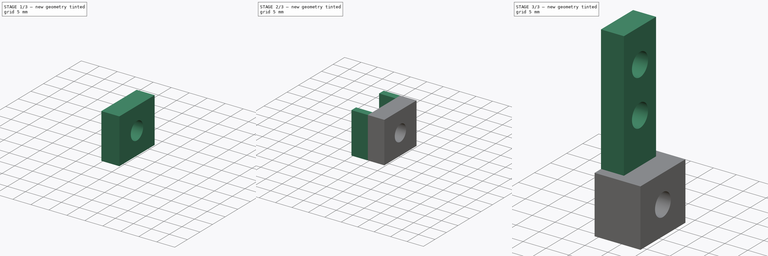
[diagram: build sequence overview — one tinted view per stage of 3, left to right]
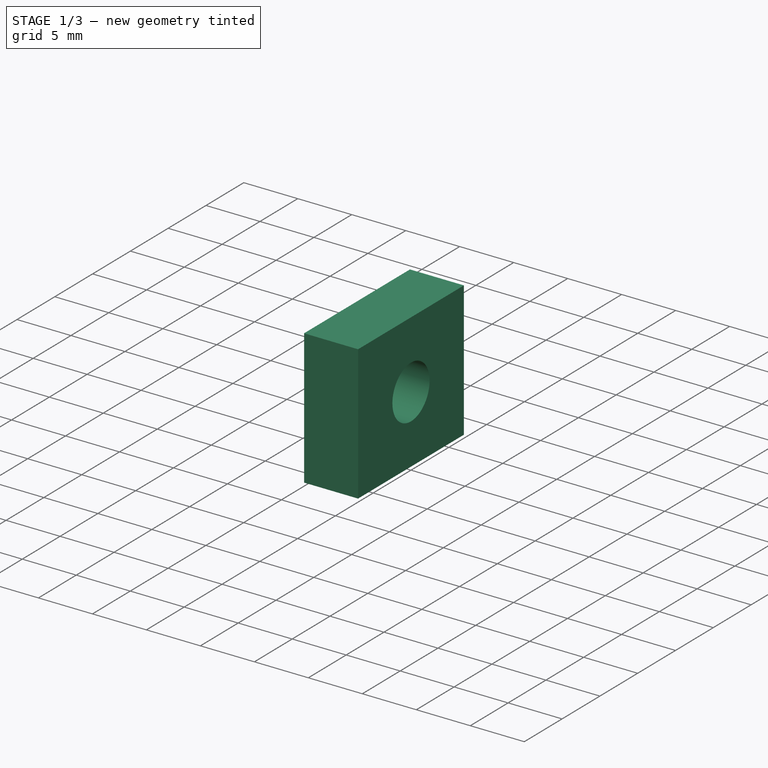
[diagram: stage 1 of 3 — iso view after this stage's code; geometry added in this stage tinted green]
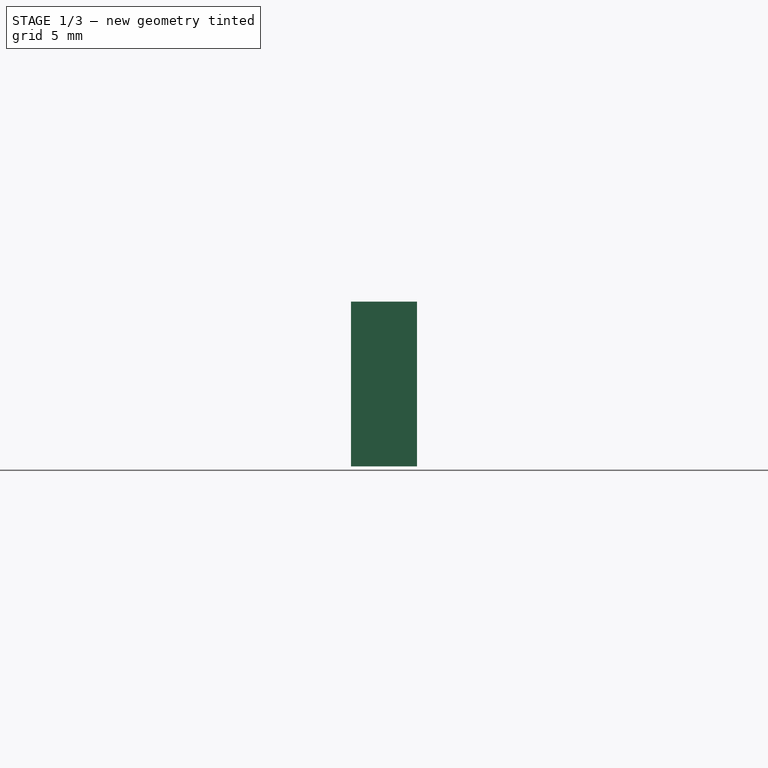
[diagram: stage 1 of 3 — front view after this stage's code; geometry added in this stage tinted green]
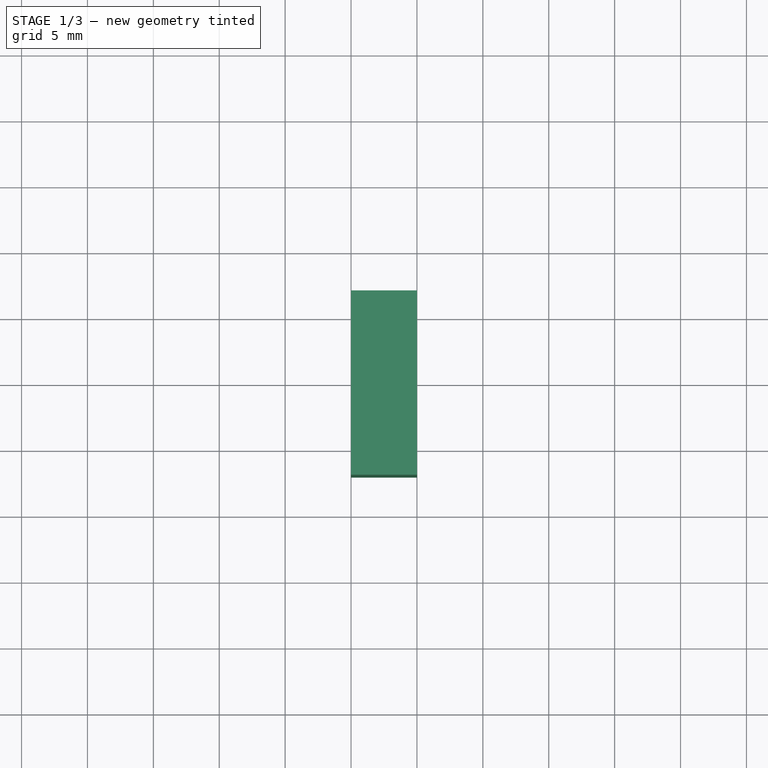
[diagram: stage 1 of 3 — top view after this stage's code; geometry added in this stage tinted green]
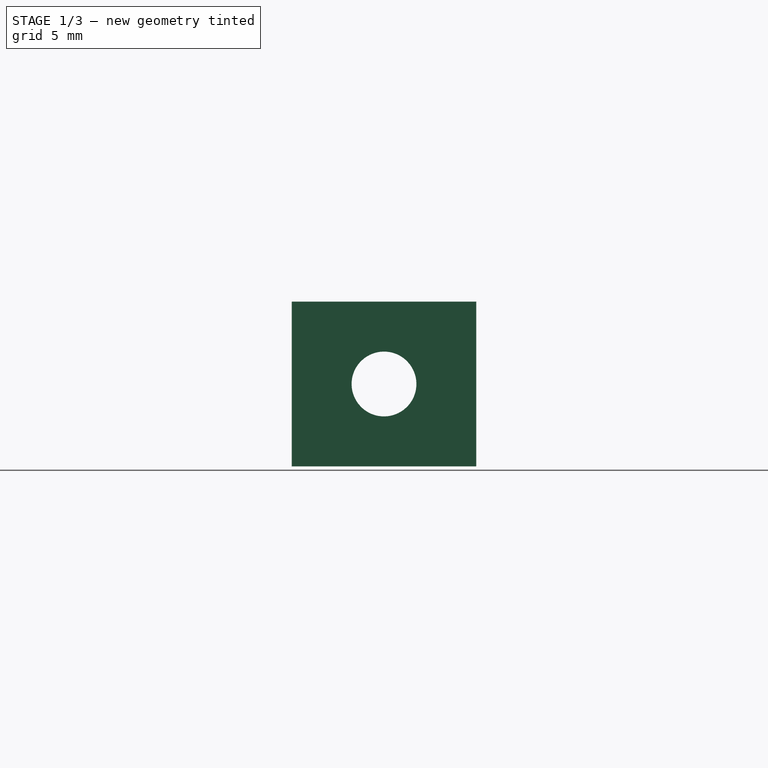
[diagram: stage 1 of 3 — right view after this stage's code; geometry added in this stage tinted green]
FCSTD DOCUMENT  (FreeCAD 0.18R16146 (Git))
Label: holder
Comment: # 2020-08-04 16:31:12: read from <userpath>/repositories/sussex_neuro/Olfactometer/hardware/mechanics/from_raiser_et_al/holder.ipt
License: All rights reserved
LicenseURL: http://en.wikipedia.org/wiki/All_rights_reserved
objects: Sketcher::SketchObject×12, Part::Extrusion×5, Spreadsheet::Sheet×1, PartDesign::Hole×1
note: 19 computed .brp shape members not serialized (recipe doc carries the construction recipe); baked Part::Feature solids carry a one-line shape summary decoded from their .brp

FEATURE [Sketcher::SketchObject] Sketch6
  Placement = pos=(5,0,0) rot=(0,1,0;1.5708rad)
  sketch-geometry (6):
    g0: LineSegment StartX=27.5 StartY=12 StartZ=0 EndX=40 EndY=12 EndZ=0
    g1: LineSegment StartX=40 StartY=12 StartZ=0 EndX=40 EndY=-2 EndZ=0
    g2: LineSegment StartX=40 StartY=-2 StartZ=0 EndX=27.5 EndY=-2 EndZ=0
    g3: LineSegment StartX=27.5 StartY=-2 StartZ=0 EndX=27.5 EndY=12 EndZ=0
    g4: LineSegment [constr] StartX=40 StartY=-2 StartZ=0 EndX=40 EndY=12 EndZ=0
    g5: LineSegment [constr] StartX=27.5 StartY=12 StartZ=0 EndX=40 EndY=12 EndZ=0
  constraints (3):
    c: Perpendicular(g0,g1)
    c: Parallel(g0,g2)
    c: Horizontal(g0)
FEATURE [Sketcher::SketchObject] Sketch6_bp
  Placement = pos=(5,0,0) rot=(0,1,0;1.5708rad)
  sketch-geometry (4):
    g0: LineSegment StartX=40 StartY=-2 StartZ=0 EndX=40 EndY=12 EndZ=0
    g1: LineSegment StartX=40 StartY=12 StartZ=0 EndX=27.5 EndY=12 EndZ=0
    g2: LineSegment StartX=27.5 StartY=12 StartZ=0 EndX=27.5 EndY=-2 EndZ=0
    g3: LineSegment StartX=27.5 StartY=-2 StartZ=0 EndX=40 EndY=-2 EndZ=0
FEATURE [Part::Extrusion] Extrusion6
  Base = -> Sketch6_bp
  Dir = (1,0,0)
  DirMode = 0
  FaceMakerClass = Part::FaceMakerBullseye
  LengthFwd = 5
  LengthRev = 0
  Solid = true
  Symmetric = false
  expr: LengthFwd = Parameters.d26_
  expr: TaperAngle = Parameters.d27_
FEATURE [Sketcher::SketchObject] Sketch7
  Placement = pos=(10,0,0) rot=(0,1,0;1.5708rad)
  sketch-geometry (2):
    g0: LineSegment [constr] StartX=40 StartY=1.1e-15 StartZ=0 EndX=40 EndY=10 EndZ=0
    g1: LineSegment [constr] StartX=38 StartY=12 StartZ=0 EndX=29.5 EndY=12 EndZ=0
FEATURE [Sketcher::SketchObject] Hole1_bp
  Placement = pos=(10,0,0) rot=(0,1,0;1.5708rad)
  sketch-geometry (1):
    g0: Circle CenterX=33.75 CenterY=5 CenterZ=0 NormalX=0 NormalY=0 NormalZ=1 AngleXU=0 Radius=2.4585
FEATURE [PartDesign::Hole] Hole1
  BaseFeature = -> Extrusion6
  Depth = 9.47722
  DepthType = 0
  Diameter = 4.917
  DrillPoint = 1
  DrillPointAngle = 118
  HoleCutCountersinkAngle = 90
  HoleCutDepth = 0
  HoleCutDiameter = 0
  HoleCutType = 0
  ModelActualThread = false
  Profile = -> Hole1_bp
  Tapered = false
  TaperedAngle = 90
  ThreadAngle = 0
  ThreadClass = 0
  ThreadCutOffInner = 0
  ThreadCutOffOuter = 0
  ThreadDirection = 0
  ThreadFit = 0
  ThreadPitch = 0
  ThreadSize = 0
  ThreadType = 0
  Threaded = false
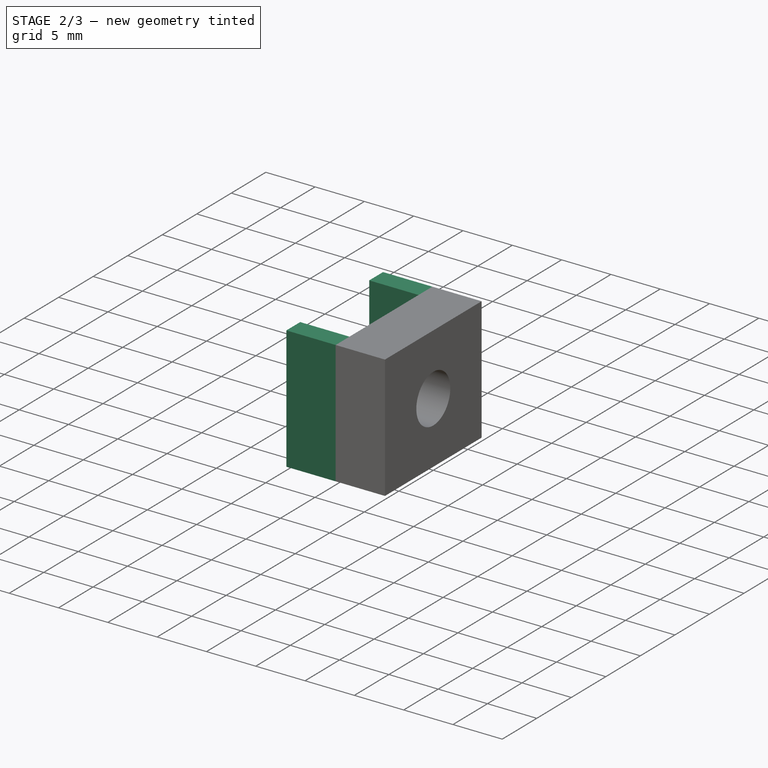
[diagram: stage 2 of 3 — iso view after this stage's code; geometry added in this stage tinted green]
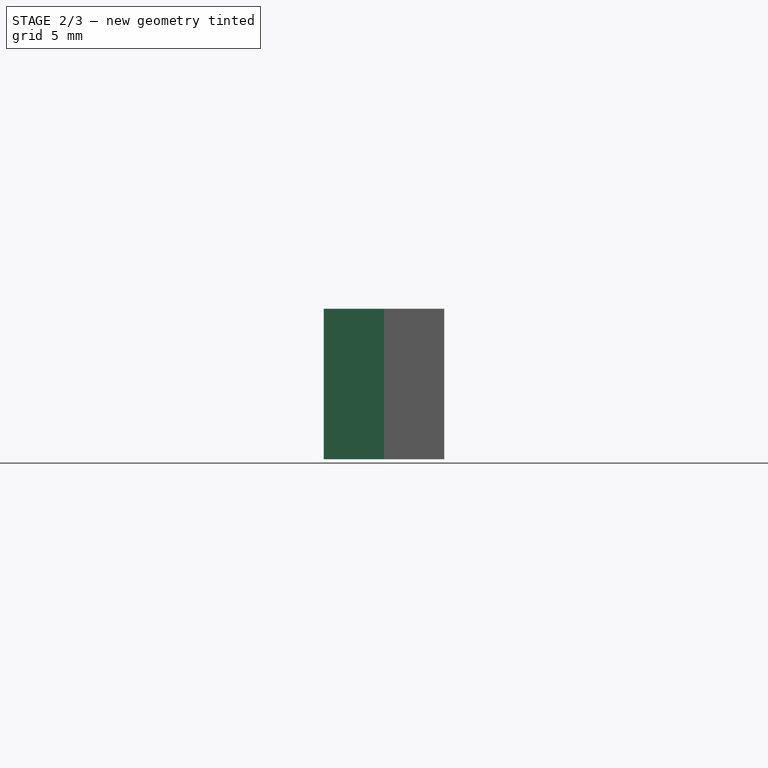
[diagram: stage 2 of 3 — front view after this stage's code; geometry added in this stage tinted green]
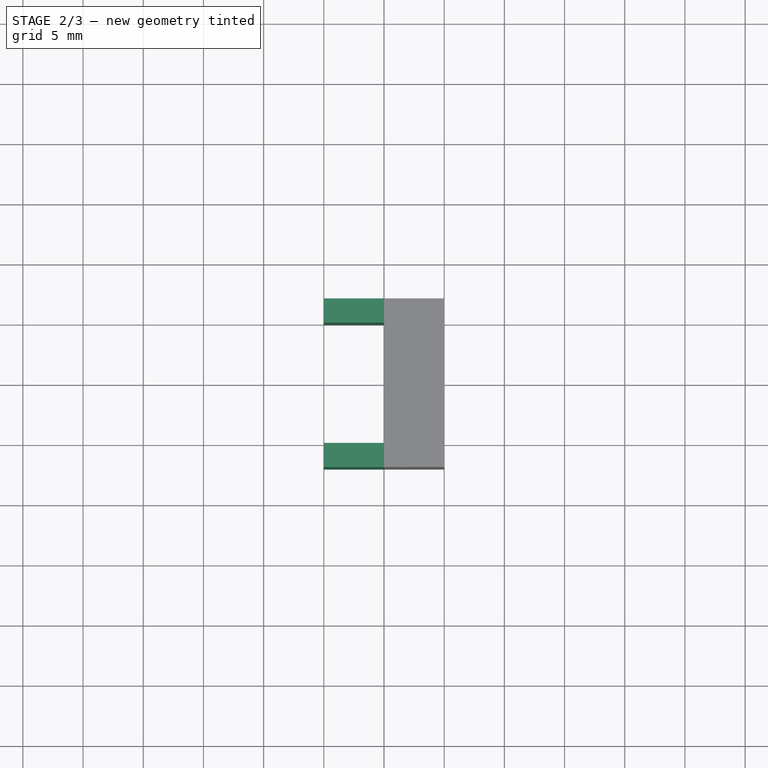
[diagram: stage 2 of 3 — top view after this stage's code; geometry added in this stage tinted green]
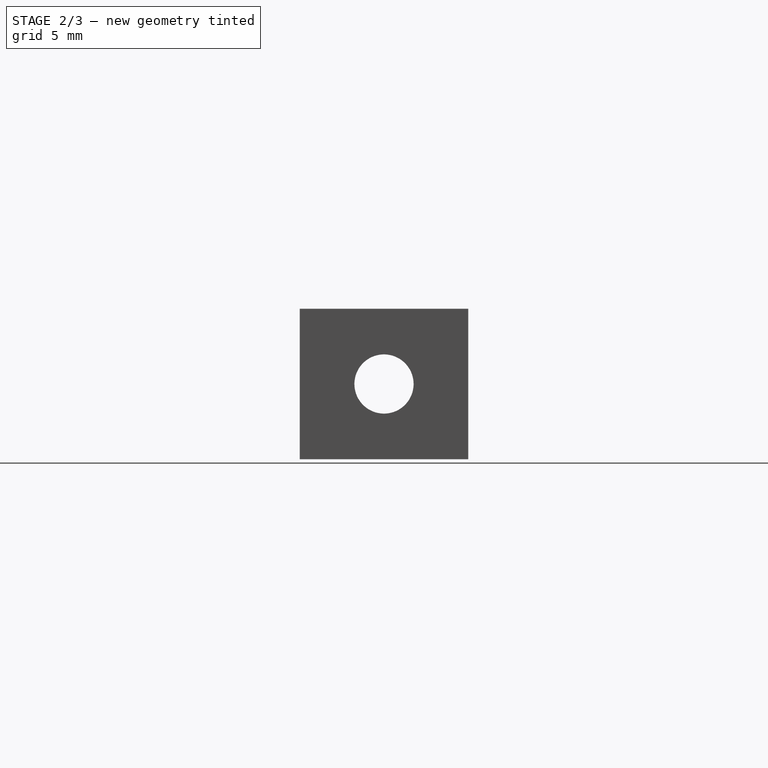
[diagram: stage 2 of 3 — right view after this stage's code; geometry added in this stage tinted green]
FEATURE [Sketcher::SketchObject] Sketch4
  Placement = pos=(0,10,0) rot=(-1,0,0;1.5708rad)
  sketch-geometry (6):
    g0: LineSegment [constr] StartX=5 StartY=0 StartZ=0 EndX=5 EndY=40 EndZ=0
    g1: LineSegment [constr] StartX=0 StartY=40 StartZ=0 EndX=5 EndY=40 EndZ=0
    g2: LineSegment StartX=0 StartY=40 StartZ=0 EndX=5 EndY=40 EndZ=0
    g3: LineSegment StartX=5 StartY=40 StartZ=0 EndX=5 EndY=27.5 EndZ=0
    g4: LineSegment StartX=5 StartY=27.5 StartZ=0 EndX=2.7e-15 EndY=27.5 EndZ=0
    g5: LineSegment StartX=2.3e-15 StartY=27.5 StartZ=0 EndX=0 EndY=40 EndZ=0
  constraints (6):
    c: Perpendicular(g2,g3)
    c: Parallel(g2,g4)
    c: Parallel(g3,g5)
    c: Horizontal(g2)
    c: PointOnObject(g3,g0)
    c: Coincident(g3,g4)
FEATURE [Sketcher::SketchObject] Sketch4_bp
  Placement = pos=(0,10,0) rot=(-1,0,0;1.5708rad)
  sketch-geometry (4):
    g0: LineSegment StartX=0 StartY=40 StartZ=0 EndX=2.3e-15 EndY=27.5 EndZ=0
    g1: LineSegment StartX=2.3e-15 StartY=27.5 StartZ=0 EndX=5 EndY=27.5 EndZ=0
    g2: LineSegment StartX=5 StartY=27.5 StartZ=0 EndX=5 EndY=40 EndZ=0
    g3: LineSegment StartX=5 StartY=40 StartZ=0 EndX=0 EndY=40 EndZ=0
FEATURE [Part::Extrusion] Extrusion3
  Base = -> Sketch4_bp
  Dir = (0,1,0)
  DirMode = 0
  FaceMakerClass = Part::FaceMakerBullseye
  LengthFwd = 2
  LengthRev = 0
  Solid = true
  Symmetric = false
  expr: LengthFwd = Parameters.d6_
  expr: TaperAngle = Parameters.d7_
FEATURE [Sketcher::SketchObject] Sketch5
  Placement = pos=(0,0,0) rot=(1,0,0;1.5708rad)
  sketch-geometry (5):
    g0: LineSegment [constr] StartX=5 StartY=0 StartZ=0 EndX=5 EndY=-40 EndZ=0
    g1: LineSegment StartX=0 StartY=-40 StartZ=0 EndX=5 EndY=-40 EndZ=0
    g2: LineSegment StartX=5 StartY=-40 StartZ=0 EndX=5 EndY=-27.5 EndZ=0
    g3: LineSegment StartX=5 StartY=-27.5 StartZ=0 EndX=-3.6e-15 EndY=-27.5 EndZ=0
    g4: LineSegment StartX=-3.8e-15 StartY=-27.5 StartZ=0 EndX=0 EndY=-40 EndZ=0
  constraints (5):
    c: Perpendicular(g1,g2)
    c: Parallel(g1,g3)
    c: Horizontal(g1)
    c: PointOnObject(g2,g0)
    c: Coincident(g2,g3)
FEATURE [Sketcher::SketchObject] Sketch5_bp
  Placement = pos=(0,0,0) rot=(1,0,0;1.5708rad)
  sketch-geometry (4):
    g0: LineSegment StartX=0 StartY=-40 StartZ=0 EndX=5 EndY=-40 EndZ=0
    g1: LineSegment StartX=5 StartY=-40 StartZ=0 EndX=5 EndY=-27.5 EndZ=0
    g2: LineSegment StartX=5 StartY=-27.5 StartZ=0 EndX=-3.6e-15 EndY=-27.5 EndZ=0
    g3: LineSegment StartX=-3.8e-15 StartY=-27.5 StartZ=0 EndX=0 EndY=-40 EndZ=0
FEATURE [Part::Extrusion] Extrusion4
  Base = -> Sketch5_bp
  Dir = (0,-1,0)
  DirMode = 0
  FaceMakerClass = Part::FaceMakerBullseye
  LengthFwd = 2
  LengthRev = 0
  Solid = true
  Symmetric = false
  expr: LengthFwd = Parameters.d9_
  expr: TaperAngle = Parameters.d10_
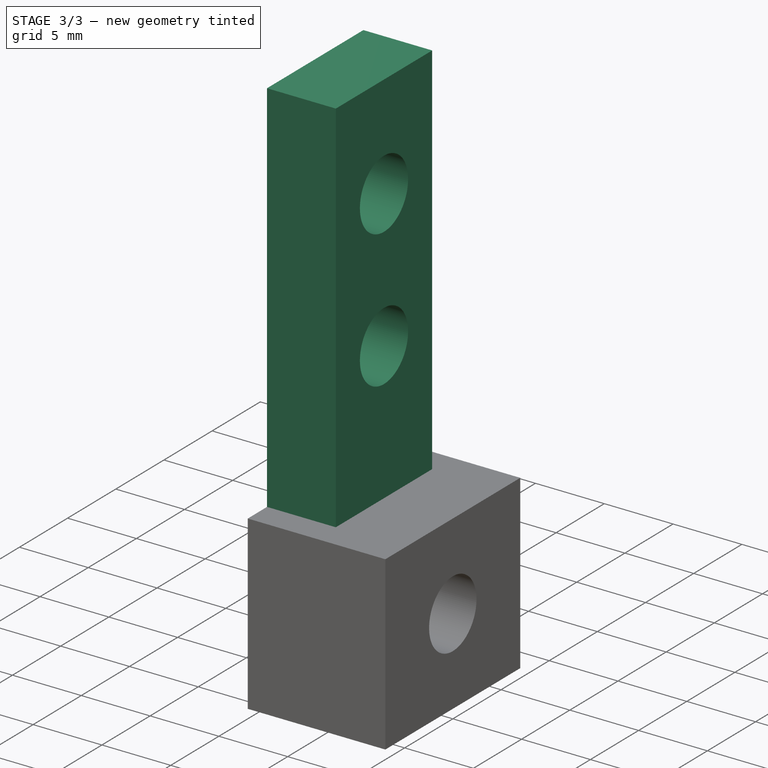
[diagram: stage 3 of 3 — iso view after this stage's code; geometry added in this stage tinted green]
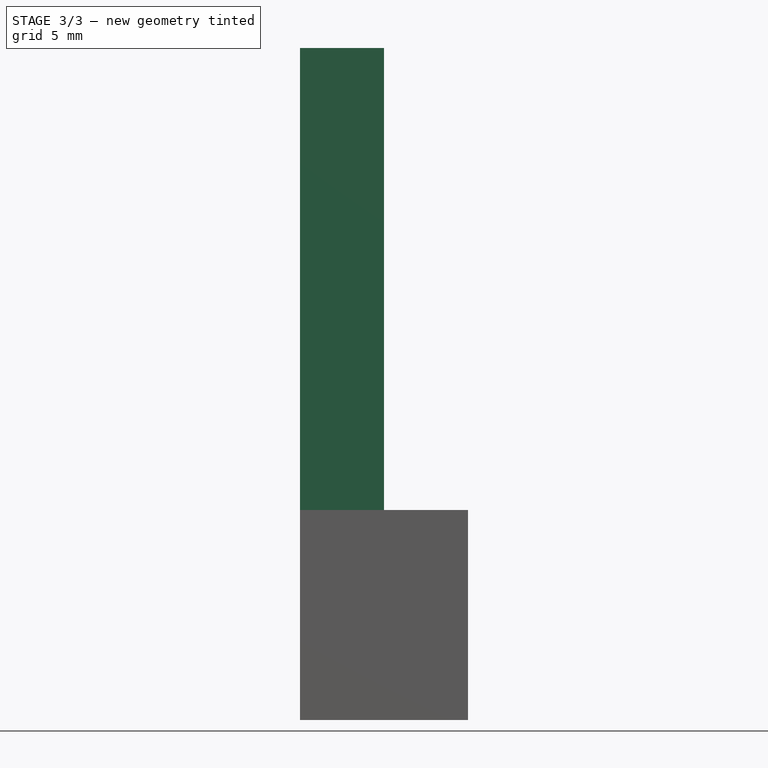
[diagram: stage 3 of 3 — front view after this stage's code; geometry added in this stage tinted green]
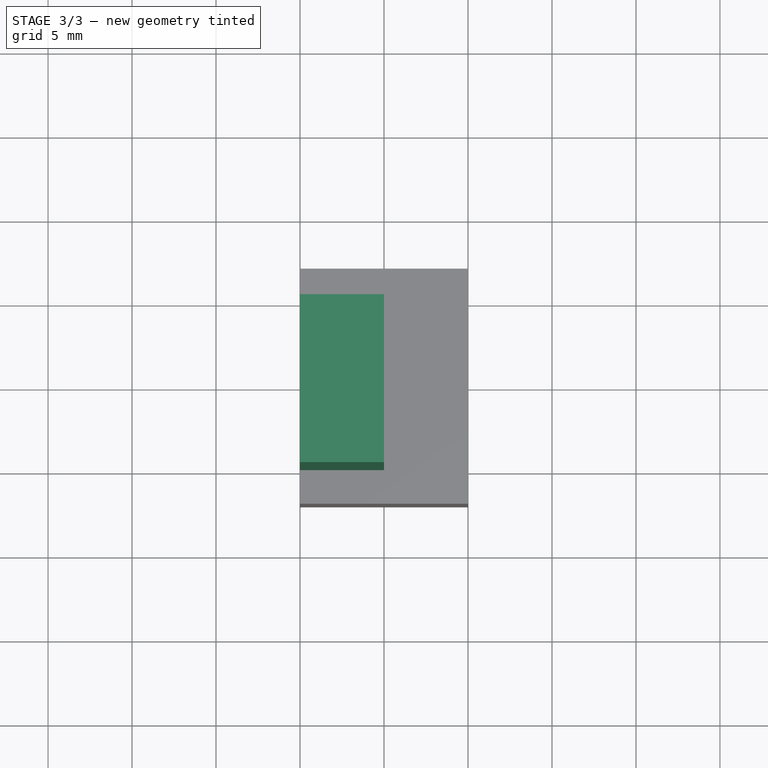
[diagram: stage 3 of 3 — top view after this stage's code; geometry added in this stage tinted green]
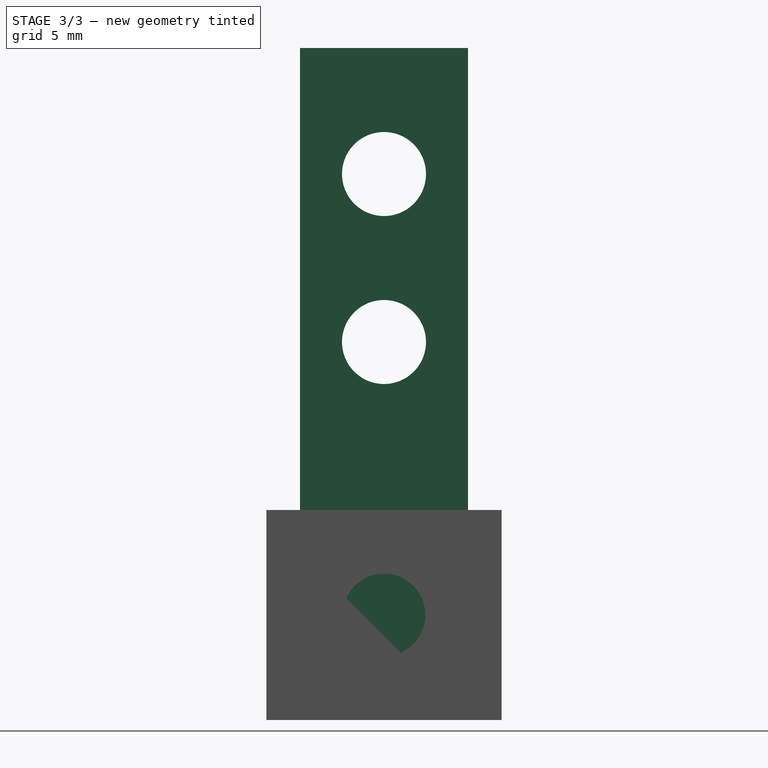
[diagram: stage 3 of 3 — right view after this stage's code; geometry added in this stage tinted green]
FEATURE [Spreadsheet::Sheet] Parameters
  cells = A1=Parameter; B1=Value; C1=Fromula; D1=Tolerance; E1=Comment; A2=d0; B2(d0_)=5; C2=5mm; D2=NOMINAL; A3=d1; B3(d1_)=0; C3=0°; D3=NOMINAL; A4=d10; B4(d10_)=0; C4=0°; D4=NOMINAL; A5=d2; B5(d2_)=10; C5=10mm; D5=NOMINAL; A6=d20; B6(d20_)=1; C6=1mm; D6=NOMINAL; A7=d21; B7(d21_)=2; C7=2mm; D7=NOMINAL; A8=d22; B8(d22_)=45; C8=45°; D8=NOMINAL; A9=d23; B9(d23_)=30; C9=30mm; D9=NOMINAL; A10=d25; B10(d25_)=30; C10=30mm; D10=NOMINAL; A11=d26; B11(d26_)=5; C11=5mm; D11=NOMINAL; A12=d27; B12(d27_)=0; C12=0°; D12=NOMINAL; A13=d28; B13(d28_)=2; C13=2mm; D13=NOMINAL; A14=d29; B14(d29_)=2; C14=2mm; D14=NOMINAL; A15=d3; B15(d3_)=0; C15=0°; D15=NOMINAL; A16=d30; B16(d30_)=45; C16=45°; D16=NOMINAL; A17=d31; B17(d31_)=4.917; C17=4.917mm; D17=NOMINAL; A18=d32; B18(d32_)=6.000000000000001; C18=6mm; D18=NOMINAL; A19=d33; B19(d33_)=4; C19=4mm; D19=NOMINAL; A20=d34; B20(d34_)=2; C20=2mm; D20=NOMINAL; A21=d35; B21(d35_)=90; C21=90°; D21=NOMINAL; A22=d36; B22(d36_)=8; C22=8mm; D22=NOMINAL; A23=d37; B23(d37_)=118; C23=118°; D23=NOMINAL; A24=d38; B24(d38_)=10; C24=10mm; D24=NOMINAL; A25=d39; B25(d39_)=5; C25=5mm; D25=NOMINAL; A26=d40; B26(d40_)=5; C26=5mm; D26=NOMINAL; A27=d41; B27(d41_)=10; C27=10mm; D27=NOMINAL; A28=d42; B28(d42_)=5; C28=5mm; D28=NOMINAL; A29=d43; B29(d43_)=5; C29=5mm; D29=NOMINAL; A30=d44; B30(d44_)=7; C30=7mm; D30=NOMINAL; A31=d45; B31(d45_)=6.25; C31=6.25mm; D31=NOMINAL; A32=d5; B32(d5_)=12.5; C32=12.5mm; D32=NOMINAL; A33=d6; B33(d6_)=2; C33=2mm; D33=NOMINAL; A34=d7; B34(d7_)=0; C34=0°; D34=NOMINAL; A35=d8; B35(d8_)=12.5; C35=12.5mm; D35=NOMINAL; A36=d9; B36(d9_)=2; C36=2mm; D36=NOMINAL
FEATURE [Sketcher::SketchObject] Sketch1
  Placement = pos=(0,0,0) rot=(0.57735,0.57735,0.57735;2.0944rad)
  sketch-geometry (6):
    g0: Circle CenterX=5 CenterY=-7.5 CenterZ=0 NormalX=0 NormalY=0 NormalZ=1 AngleXU=0 Radius=2.5
    g1: Circle CenterX=5 CenterY=-17.5 CenterZ=0 NormalX=0 NormalY=0 NormalZ=1 AngleXU=0 Radius=2.5
    g2: LineSegment StartX=1.3e-15 StartY=-30 StartZ=0 EndX=10 EndY=-30 EndZ=0
    g3: LineSegment StartX=10 StartY=-30 StartZ=0 EndX=10 EndY=0 EndZ=0
    g4: LineSegment StartX=10 StartY=0 StartZ=0 EndX=0 EndY=0 EndZ=0
    g5: LineSegment StartX=0 StartY=0 StartZ=0 EndX=1.3e-15 EndY=-30 EndZ=0
  constraints (4):
    c: Radius(g0) = 2.5  'd42'
    c: Radius(g1) = 2.5  'd43'
    c: Coincident(g-1,g4)
    c: Coincident(g-1,g5)
FEATURE [Sketcher::SketchObject] Sketch1_bp
  Placement = pos=(0,0,0) rot=(0.57735,0.57735,0.57735;2.0944rad)
  sketch-geometry (6):
    g0: LineSegment StartX=1.3e-15 StartY=-30 StartZ=0 EndX=10 EndY=-30 EndZ=0
    g1: LineSegment StartX=10 StartY=-30 StartZ=0 EndX=10 EndY=0 EndZ=0
    g2: LineSegment StartX=10 StartY=0 StartZ=0 EndX=0 EndY=0 EndZ=0
    g3: LineSegment StartX=0 StartY=0 StartZ=0 EndX=1.3e-15 EndY=-30 EndZ=0
    g4: Circle CenterX=5 CenterY=-7.5 CenterZ=0 NormalX=0 NormalY=0 NormalZ=1 AngleXU=0 Radius=2.5
    g5: Circle CenterX=5 CenterY=-17.5 CenterZ=0 NormalX=0 NormalY=0 NormalZ=1 AngleXU=0 Radius=2.5
FEATURE [Part::Extrusion] Extrusion1
  Base = -> Sketch1_bp
  Dir = (1,0,0)
  DirMode = 0
  FaceMakerClass = Part::FaceMakerBullseye
  LengthFwd = 5
  LengthRev = 0
  Solid = true
  Symmetric = false
  expr: LengthFwd = Parameters.d0_
  expr: TaperAngle = Parameters.d1_
FEATURE [Sketcher::SketchObject] Sketch2
  Placement = pos=(0,0,-30) rot=(0,1,0;3.14159rad)
  sketch-geometry (4):
    g0: LineSegment [constr] StartX=0 StartY=0 StartZ=0 EndX=0 EndY=10 EndZ=0
    g1: LineSegment [constr] StartX=0 StartY=10 StartZ=0 EndX=-5 EndY=10 EndZ=0
    g2: LineSegment [constr] StartX=-5 StartY=0 StartZ=0 EndX=-5 EndY=10 EndZ=0
    g3: LineSegment [constr] StartX=0 StartY=0 StartZ=0 EndX=-5 EndY=0 EndZ=0
FEATURE [Sketcher::SketchObject] Sketch2_bp
  Placement = pos=(0,0,-30) rot=(0,1,0;3.14159rad)
  sketch-geometry (4):
    g0: LineSegment StartX=0 StartY=0 StartZ=0 EndX=0 EndY=10 EndZ=0
    g1: LineSegment StartX=0 StartY=10 StartZ=0 EndX=-5 EndY=10 EndZ=0
    g2: LineSegment StartX=-5 StartY=10 StartZ=0 EndX=-5 EndY=0 EndZ=0
    g3: LineSegment StartX=-5 StartY=0 StartZ=0 EndX=0 EndY=0 EndZ=0
FEATURE [Part::Extrusion] Extrusion2
  Base = -> Sketch2_bp
  Dir = (0,0,-1)
  DirMode = 0
  FaceMakerClass = Part::FaceMakerBullseye
  LengthFwd = 10
  LengthRev = 0
  Solid = true
  Symmetric = false
  expr: LengthFwd = Parameters.d2_
  expr: TaperAngle = Parameters.d3_
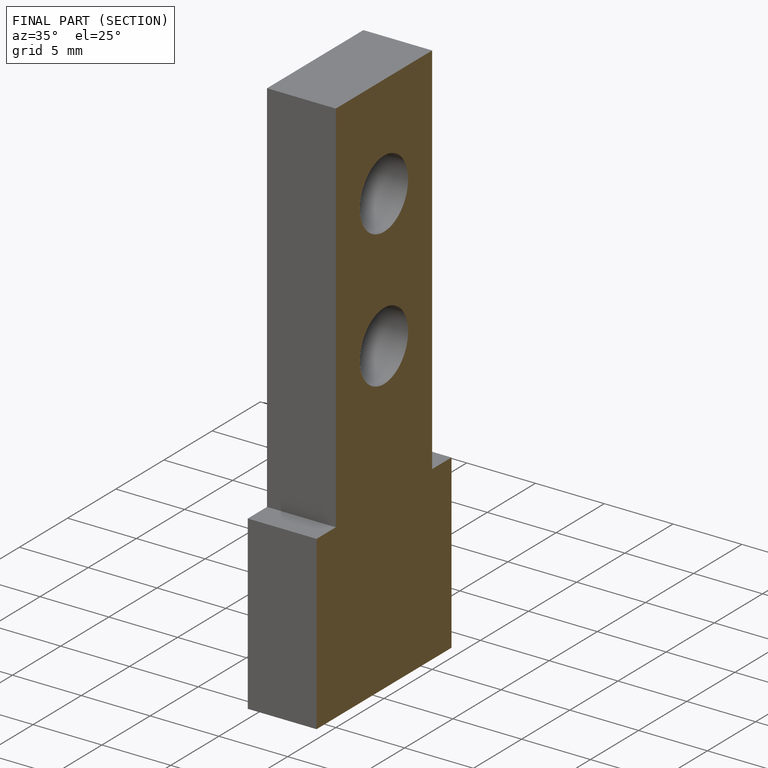
[diagram: finished part — half-section view (interior)]
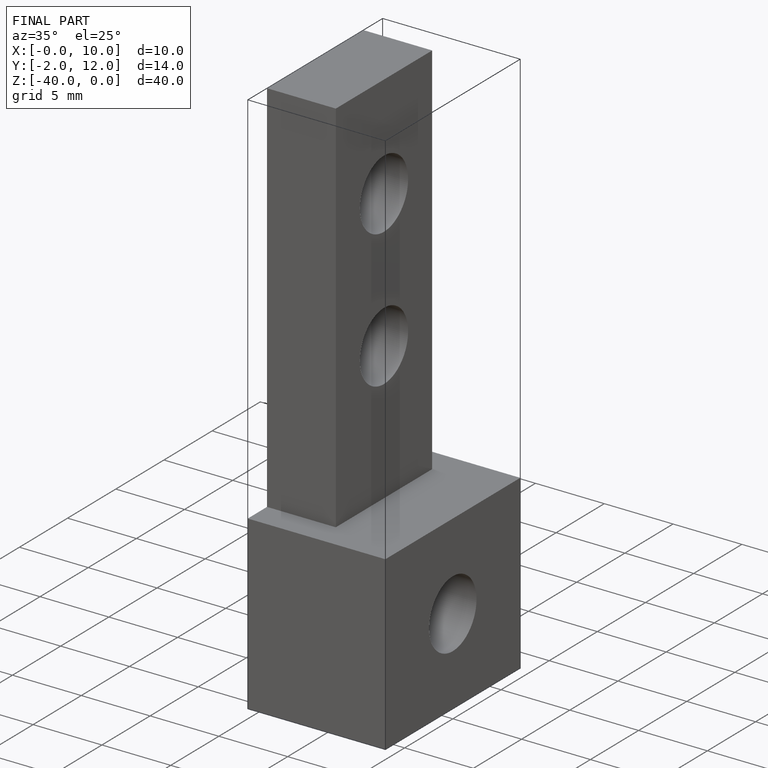
[diagram: finished part — iso view with bounding-box wireframe]
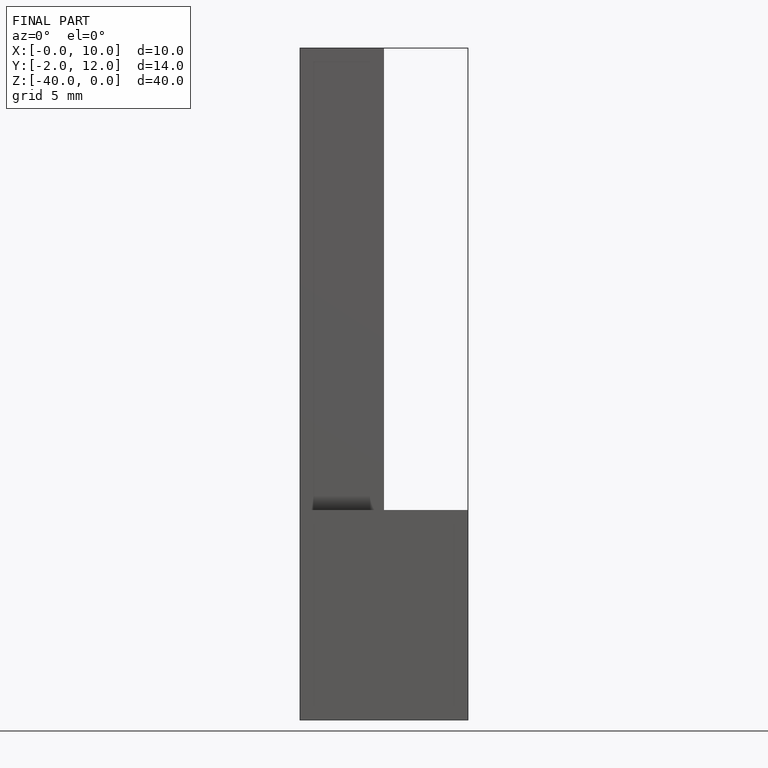
[diagram: finished part — front view with bounding-box wireframe]
